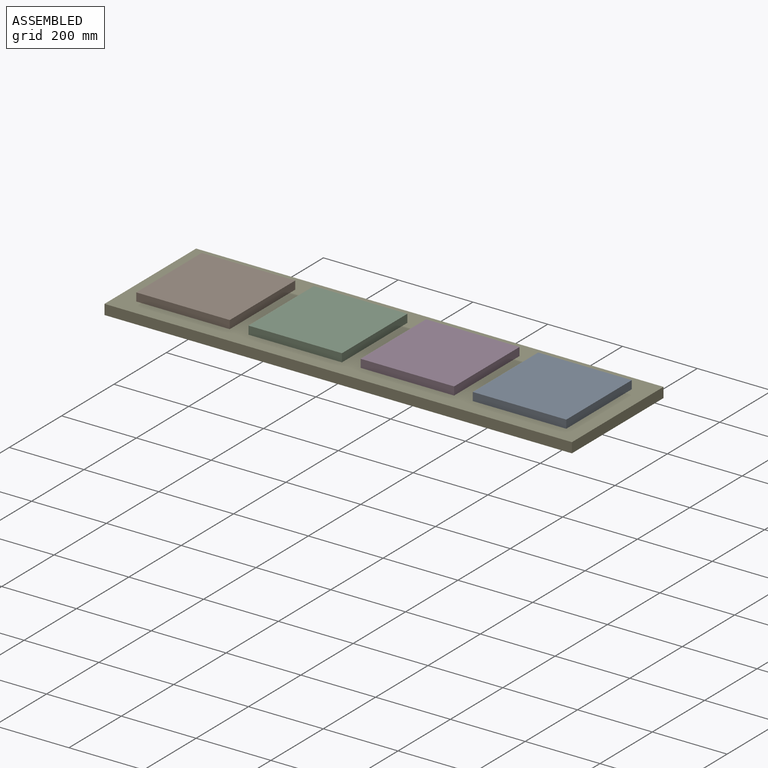
[diagram: assembled view]
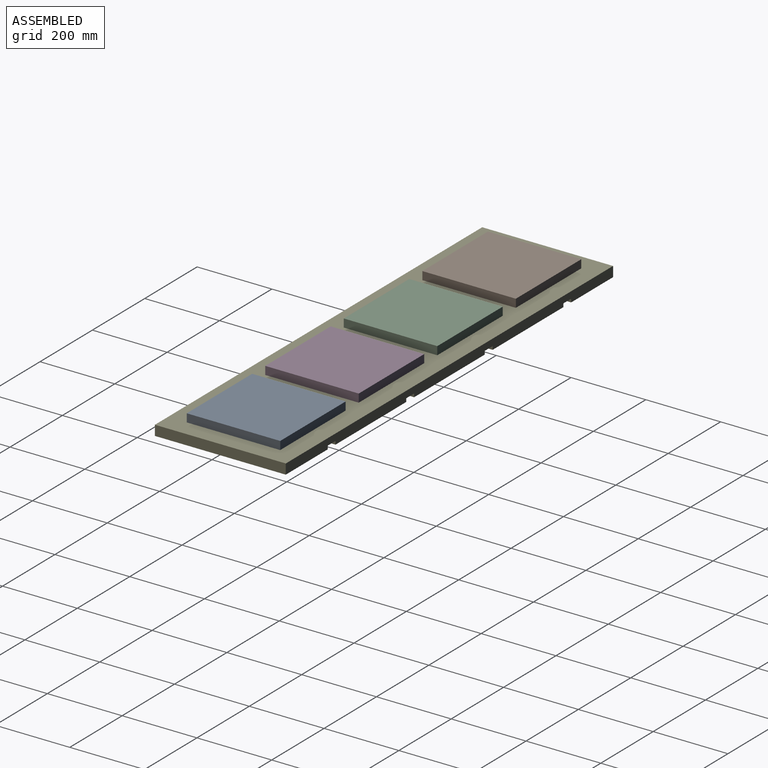
[diagram: assembled view, second angle]
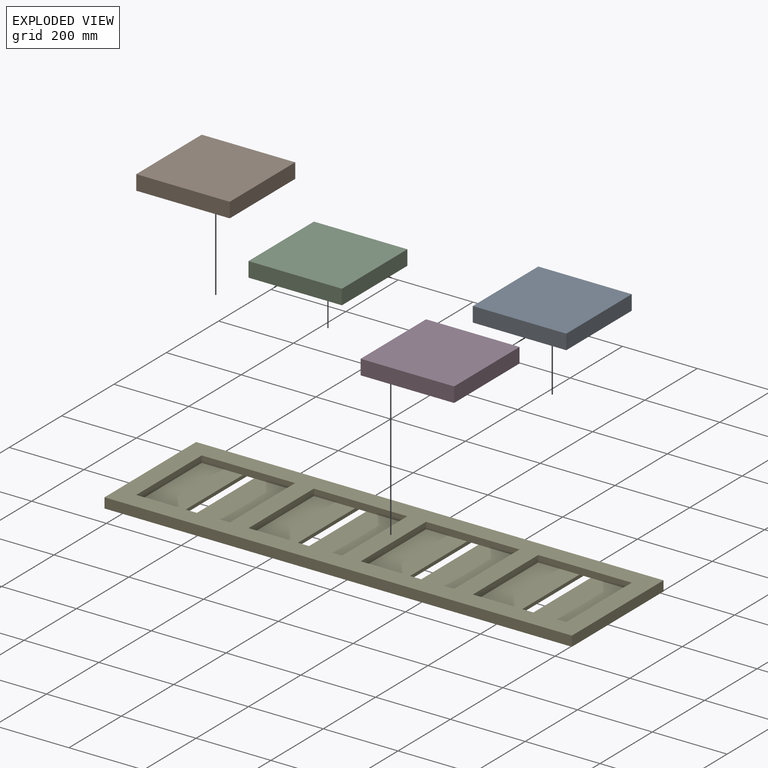
[diagram: exploded view]
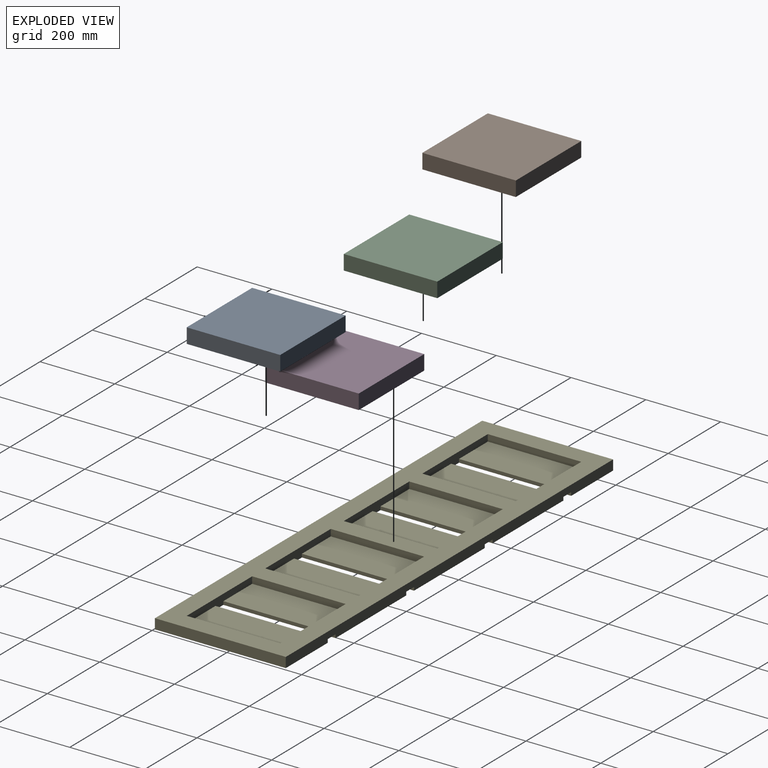
[diagram: exploded view, second angle]
ASSEMBLY  parts=5 mates=4
PART A: 6 faces, bbox 250x250x40 mm
  f0: plane 250x40mm, normal (0,-1,0), area 10000mm2, adj f1,f3,f4,f5
  f1: plane 250x40mm, normal (1,0,0), area 10000mm2, adj f0,f2,f4,f5
  f2: plane 250x40mm, normal (0,1,0), area 10000mm2, adj f1,f3,f4,f5
  f3: plane 250x40mm, normal (-1,0,0), area 10000mm2, adj f0,f2,f4,f5
  f4: plane 250x250mm, normal (0,0,1), area 62500mm2, adj f0,f1,f2,f3
  f5: plane 250x250mm, normal (0,0,-1), area 62500mm2, adj f0,f1,f2,f3
PART B: same geometry as A
PART C: same geometry as A
PART D: same geometry as A
PART E: 42 faces, bbox 1250x350x27 mm
  f0: plane 50x30mm, normal (0,0,-1), area 1500mm2, adj f5,f6,f32,f39
  f1: plane 50x30mm, normal (0,0,-1), area 1500mm2, adj f5,f10,f37,f38
  f2: plane 50x30mm, normal (0,0,-1), area 1500mm2, adj f5,f13,f35,f36
  f3: plane 1250x27mm, normal (0,-1,0), area 33750mm2, adj f4,f22,f23,f40
  f4: plane 350x27mm, normal (1,0,0), area 9450mm2, adj f3,f5,f23,f40
  f5: plane 1250x27mm, normal (0,1,0), area 32670mm2, adj f0,f1,f2,f4,f22,f23,f24,f32
  f6: plane 250x18mm, normal (0,-1,0), area 4500mm2, adj f0,f7,f18,f23,f30,f31
  f7: plane 250x18mm, normal (-1,0,0), area 4500mm2, adj f6,f8,f23,f31
  f8: plane 250x27mm, normal (0,1,0), area 4770mm2, adj f7,f18,f23,f30,f31,f32,f39,f40
  f9: plane 250x18mm, normal (1,0,0), area 4500mm2, adj f10,f19,f23,f41
  f10: plane 250x18mm, normal (0,-1,0), area 4500mm2, adj f1,f9,f11,f23,f29,f41
  f11: plane 250x18mm, normal (-1,0,0), area 4500mm2, adj f10,f19,f23,f29
  f12: plane 250x18mm, normal (1,0,0), area 4500mm2, adj f13,f20,f23,f27
  f13: plane 250x18mm, normal (0,-1,0), area 4500mm2, adj f2,f12,f14,f23,f27,f28
  f14: plane 250x18mm, normal (-1,0,0), area 4500mm2, adj f13,f20,f23,f28
  f15: plane 250x18mm, normal (1,0,0), area 4500mm2, adj f16,f21,f23,f25
  f16: plane 250x18mm, normal (0,-1,0), area 4500mm2, adj f15,f17,f23,f24,f25,f26
  f17: plane 250x18mm, normal (-1,0,0), area 4500mm2, adj f16,f21,f23,f26
  f18: plane 250x18mm, normal (1,0,0), area 4500mm2, adj f6,f8,f23,f30
  f19: plane 250x27mm, normal (0,1,0), area 4770mm2, adj f9,f11,f23,f29,f37,f38,f40,f41
  f20: plane 250x27mm, normal (0,1,0), area 4770mm2, adj f12,f14,f23,f27,f28,f35,f36,f40
  f21: plane 250x27mm, normal (0,1,0), area 4770mm2, adj f15,f17,f23,f25,f26,f33,f34,f40
  f22: plane 350x27mm, normal (-1,0,0), area 9450mm2, adj f3,f5,f23,f40
  f23: plane 1250x350mm, normal (0,0,1), area 187500mm2, adj f3,f4,f5,f6,f7,f8,f9,f10
  f24: plane 50x30mm, normal (0,0,-1), area 1500mm2, adj f5,f16,f33,f34
  f25: plane 250x110mm, normal (0,0,1), area 27500mm2, adj f15,f16,f21,f33
  f26: plane 250x110mm, normal (0,0,1), area 27500mm2, adj f16,f17,f21,f34
  f27: plane 250x110mm, normal (0,0,1), area 27500mm2, adj f12,f13,f20,f35
  f28: plane 250x110mm, normal (0,0,1), area 27500mm2, adj f13,f14,f20,f36
  f29: plane 250x110mm, normal (0,0,1), area 27500mm2, adj f10,f11,f19,f38
  f30: plane 250x110mm, normal (0,0,1), area 27500mm2, adj f6,f8,f18,f39
  f31: plane 250x110mm, normal (0,0,1), area 27500mm2, adj f6,f7,f8,f32
  f32: plane 300x9mm, normal (-1,0,0), area 2700mm2, adj f0,f5,f8,f31,f40
  f33: plane 300x9mm, normal (1,0,0), area 2700mm2, adj f5,f21,f24,f25,f40
  f34: plane 300x9mm, normal (-1,0,0), area 2700mm2, adj f5,f21,f24,f26,f40
  f35: plane 300x9mm, normal (1,0,0), area 2700mm2, adj f2,f5,f20,f27,f40
  f36: plane 300x9mm, normal (-1,0,0), area 2700mm2, adj f2,f5,f20,f28,f40
  f37: plane 300x9mm, normal (1,0,0), area 2700mm2, adj f1,f5,f19,f40,f41
  f38: plane 300x9mm, normal (-1,0,0), area 2700mm2, adj f1,f5,f19,f29,f40
  f39: plane 300x9mm, normal (1,0,0), area 2700mm2, adj f0,f5,f8,f30,f40
  f40: plane 1250x350mm, normal (0,0,-1), area 401500mm2, adj f3,f4,f5,f8,f19,f20,f21,f22
  f41: plane 250x110mm, normal (0,0,1), area 27500mm2, adj f9,f10,f19,f37
PLACE A t=(451.49,1.26,-3.9)mm
PLACE B t=(-448.51,1.26,-3.9)mm
PLACE C t=(-148.51,1.26,-3.9)mm
PLACE D t=(151.49,1.26,-3.9)mm
PLACE E t=(1.49,1.26,-3.9)mm fixed
MATE fastened D.f5 <-> E.f41  axis (0,0,-1) through (26.49,1.26,-3.9)mm
MATE fastened E.f25 <-> B.f5  axis (0,0,1) through (-573.51,1.26,-3.9)mm
MATE fastened A.f5 <-> E.f30  axis (0,0,-1) through (326.49,1.26,-3.9)mm
MATE fastened C.f5 <-> E.f27  axis (0,0,-1) through (-273.51,1.26,-3.9)mm
